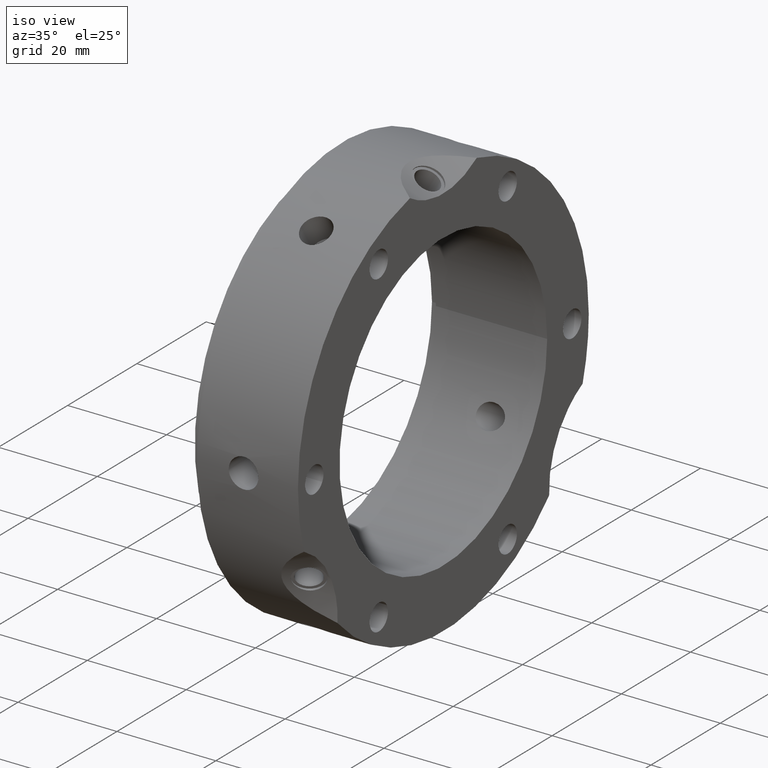
[diagram: clean part render]
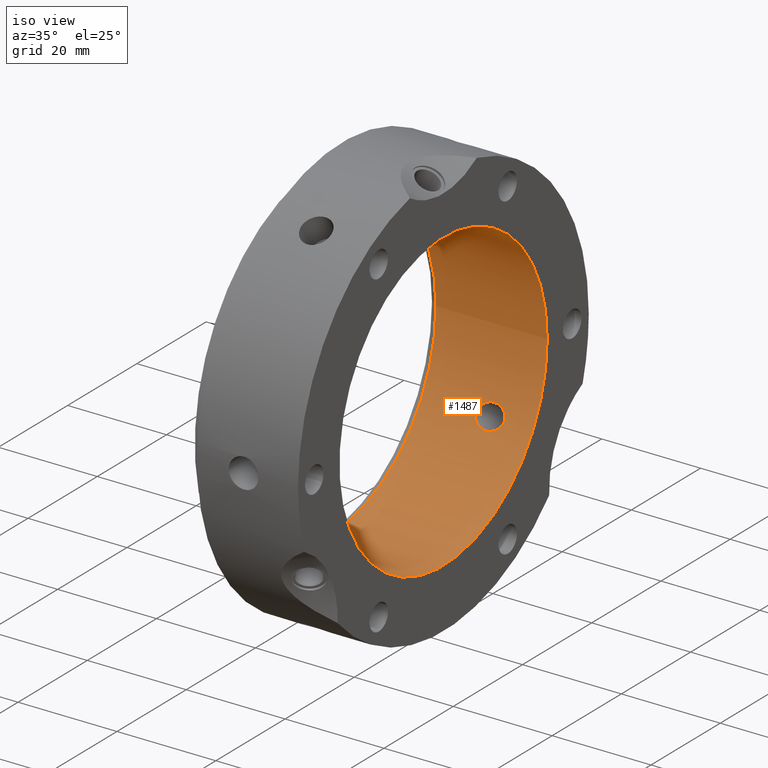
[diagram: same view with one face highlighted and labeled with its STEP entity id]
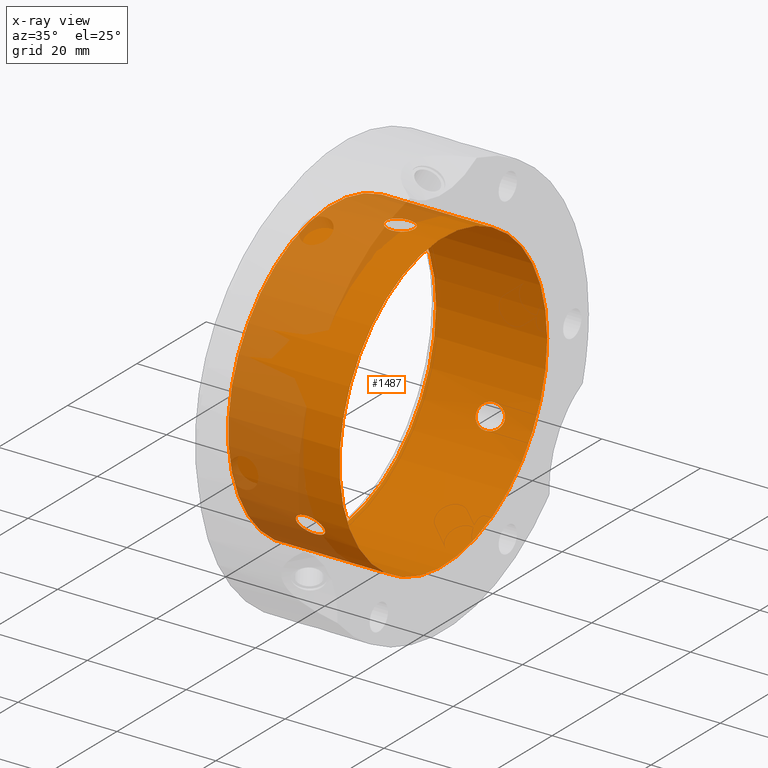
[diagram: x-ray of the same camera — body ghosted, the highlighted face saturated]
A machine part, iso view. The second image highlights one B-rep face of the part: STEP entity #1487.
The next image is the same camera in x-ray: the body ghosted, the highlighted face saturated — about 31% of this face is hidden behind the body in this view.
In plain terms, the highlighted cylindrical surface (bore or boss wall) has radius 30 mm, axis along (1, 0, 0).
Its self-contained STEP definition (entity closure, byte-faithful):
#745=CARTESIAN_POINT('',(15.262249541991931,27.12262431298786,-12.820423174627258));
#746=VERTEX_POINT('',#745);
#747=CARTESIAN_POINT('',(15.262249541991931,27.12262431298786,-12.820423174627258));
#748=CARTESIAN_POINT('',(15.627636976701096,27.12262431298786,-12.820423174627258));
#749=CARTESIAN_POINT('',(16.020136086006023,27.095251033622052,-12.87886785967725));
#750=CARTESIAN_POINT('',(16.752442942682837,26.979415190451064,-13.119795043539256));
#751=CARTESIAN_POINT('',(17.092275130512057,26.890767378951455,-13.302114125166295));
#752=CARTESIAN_POINT('',(17.592953135611992,26.688110103836912,-13.703540458398283));
#753=CARTESIAN_POINT('',(17.801899851276378,26.568065637944919,-13.9364023214765));
#754=CARTESIAN_POINT('',(18.085423899962837,26.291502705228233,-14.45137734818783));
#755=CARTESIAN_POINT('',(18.159339349294182,26.134554479456831,-14.733623808403976));
#756=CARTESIAN_POINT('',(18.159339349294182,25.826969747609468,-15.266376191596049));
#757=CARTESIAN_POINT('',(18.085423899962837,25.661011255819759,-15.543420572301054));
#758=CARTESIAN_POINT('',(17.801899851276378,25.353311266731517,-16.040418611134498));
#759=CARTESIAN_POINT('',(17.592953135611992,25.211669210679197,-16.260811099719803));
#760=CARTESIAN_POINT('',(17.092275130512057,24.965352445909534,-16.637030614846719));
#761=CARTESIAN_POINT('',(16.752442942682833,24.851783395375673,-16.804961412408804));
#762=CARTESIAN_POINT('',(16.020136086006019,24.701052255274423,-17.025741787194669));
#763=CARTESIAN_POINT('',(15.627636976701094,24.664124312987859,-17.078670085035341));
#764=CARTESIAN_POINT('',(14.919062142276687,24.664124312987859,-17.078670085035345));
#765=CARTESIAN_POINT('',(14.549284372236741,24.696875245431656,-17.031721560469542));
#766=CARTESIAN_POINT('',(13.859686883534222,24.835963319541278,-16.828253390736936));
#767=CARTESIAN_POINT('',(13.539972332394203,24.942288076802399,-16.671369021577899));
#768=CARTESIAN_POINT('',(13.047925475858605,25.18377992693603,-16.304040294412307));
#769=CARTESIAN_POINT('',(12.83680603121347,25.331052700679969,-16.075743835667222));
#770=CARTESIAN_POINT('',(12.553631012971064,25.650516665904778,-15.560937167878457));
#771=CARTESIAN_POINT('',(12.481676802083397,25.82244718342309,-15.274209502547361));
#772=CARTESIAN_POINT('',(12.481676802083397,26.139077043643219,-14.725790497452667));
#773=CARTESIAN_POINT('',(12.55363101297106,26.301425227028595,-14.433530468930456));
#774=CARTESIAN_POINT('',(12.836806031213468,26.587528896758879,-13.89946322555768));
#775=CARTESIAN_POINT('',(13.047925475858605,26.711603042754177,-13.657773032837088));
#776=CARTESIAN_POINT('',(13.539972332394203,26.908973126952567,-13.264970592231659));
#777=CARTESIAN_POINT('',(13.85968688353422,26.99167659747043,-13.0944484668128));
#778=CARTESIAN_POINT('',(14.549284372236739,27.09834116426558,-12.872260576404113));
#779=CARTESIAN_POINT('',(14.919062142276687,27.12262431298786,-12.820423174627255));
#780=CARTESIAN_POINT('',(15.262249541991931,27.12262431298786,-12.820423174627255));
#781=B_SPLINE_CURVE_WITH_KNOTS('',3,(#747,#748,#749,#750,#751,#752,#753,#754,#755,#756,#757,#758,#759,#760,#761,#762,#763,#764,#765,#766,#767,#768,#769,#770,#771,#772,#773,#774,#775,#776,#777,#778,#779,#780),.UNSPECIFIED.,.T.,.U.,(4,2,2,2,2,2,2,2,2,2,2,2,2,2,2,2,4),(0.0,0.109616230412749,0.219232460825499,0.311507880379706,0.403783299933914,0.496058719488122,0.58833413904233,0.697950369455079,0.807566599867828,0.910522819782402,1.013479039696975,1.108467997763013,1.203456955829052,1.29844591389509,1.393434871961128,1.496391091875702,1.599347311790275),.UNSPECIFIED.);
#782=EDGE_CURVE('',#746,#746,#781,.T.);
#916=CARTESIAN_POINT('',(15.262249541991926,-24.66412431298787,-17.078670085035327));
#917=VERTEX_POINT('',#916);
#918=CARTESIAN_POINT('',(15.262249541991926,-24.66412431298787,-17.078670085035327));
#919=CARTESIAN_POINT('',(15.627636976701089,-24.66412431298787,-17.078670085035327));
#920=CARTESIAN_POINT('',(16.020136086006019,-24.701052255274433,-17.025741787194647));
#921=CARTESIAN_POINT('',(16.752442942682833,-24.851783395375683,-16.804961412408783));
#922=CARTESIAN_POINT('',(17.092275130512057,-24.965352445909545,-16.637030614846701));
#923=CARTESIAN_POINT('',(17.592953135611992,-25.211669210679204,-16.260811099719781));
#924=CARTESIAN_POINT('',(17.801899851276378,-25.353311266731527,-16.040418611134481));
#925=CARTESIAN_POINT('',(18.085423899962837,-25.661011255819762,-15.543420572301033));
#926=CARTESIAN_POINT('',(18.159339349294182,-25.826969747609482,-15.266376191596034));
#927=CARTESIAN_POINT('',(18.159339349294182,-26.134554479456842,-14.733623808403959));
#928=CARTESIAN_POINT('',(18.085423899962837,-26.291502705228243,-14.451377348187819));
#929=CARTESIAN_POINT('',(17.801899851276382,-26.56806563794493,-13.936402321476489));
#930=CARTESIAN_POINT('',(17.592953135611992,-26.68811010383692,-13.703540458398265));
#931=CARTESIAN_POINT('',(17.092275130512057,-26.890767378951463,-13.302114125166277));
#932=CARTESIAN_POINT('',(16.752442942682833,-26.979415190451078,-13.119795043539233));
#933=CARTESIAN_POINT('',(16.020136086006019,-27.095251033622066,-12.878867859677229));
#934=CARTESIAN_POINT('',(15.627636976701094,-27.122624312987867,-12.820423174627241));
#935=CARTESIAN_POINT('',(14.908527139262279,-27.122624312987867,-12.820423174627241));
#936=CARTESIAN_POINT('',(14.52790402476696,-27.096843099518523,-12.87548564559672));
#937=CARTESIAN_POINT('',(13.821370532562957,-26.983781880983141,-13.110779990664669));
#938=CARTESIAN_POINT('',(13.495562842741968,-26.896164948175549,-13.29115816068866));
#939=CARTESIAN_POINT('',(13.014395466764014,-26.69291223223313,-13.694242901771144));
#940=CARTESIAN_POINT('',(12.815377719960582,-26.570753304425953,-13.931342034839805));
#941=CARTESIAN_POINT('',(12.54895968223021,-26.291337191608978,-14.451740750316093));
#942=CARTESIAN_POINT('',(12.481676802083397,-26.133791431408056,-14.734945446393066));
#943=CARTESIAN_POINT('',(12.481676802083397,-25.827732795658264,-15.26505455360692));
#944=CARTESIAN_POINT('',(12.548959682230203,-25.661243214485019,-15.543095532237931));
#945=CARTESIAN_POINT('',(12.81537771996058,-25.350272763194248,-16.045276341902287));
#946=CARTESIAN_POINT('',(13.014395466764018,-25.206018354645106,-16.269618643216699));
#947=CARTESIAN_POINT('',(13.495562842741968,-24.958563086961014,-16.647183029152256));
#948=CARTESIAN_POINT('',(13.821370532562959,-24.846159475835883,-16.813250603777298));
#949=CARTESIAN_POINT('',(14.527904024766967,-24.698919204907909,-17.028811663745739));
#950=CARTESIAN_POINT('',(14.908527139262279,-24.66412431298787,-17.078670085035327));
#951=CARTESIAN_POINT('',(15.262249541991926,-24.66412431298787,-17.078670085035327));
#952=B_SPLINE_CURVE_WITH_KNOTS('',3,(#918,#919,#920,#921,#922,#923,#924,#925,#926,#927,#928,#929,#930,#931,#932,#933,#934,#935,#936,#937,#938,#939,#940,#941,#942,#943,#944,#945,#946,#947,#948,#949,#950,#951),.UNSPECIFIED.,.T.,.U.,(4,2,2,2,2,2,2,2,2,2,2,2,2,2,2,2,4),(0.0,0.109616230412749,0.219232460825499,0.311507880379707,0.403783299933914,0.496058719488122,0.58833413904233,0.697950369455079,0.807566599867829,0.913683320686723,1.019800041505618,1.111617632230555,1.203435222955492,1.29525281368043,1.387070404405367,1.493187125224261,1.599303846043156),.UNSPECIFIED.);
#953=EDGE_CURVE('',#917,#917,#952,.T.);
#1182=CARTESIAN_POINT('',(15.262249541991933,-2.4585,29.899093259662571));
#1183=VERTEX_POINT('',#1182);
#1184=CARTESIAN_POINT('',(15.262249541991933,-2.4585,29.899093259662571));
#1185=CARTESIAN_POINT('',(15.613194848532508,-2.4585,29.899093259662571));
#1186=CARTESIAN_POINT('',(15.990886147558971,-2.39912378459716,29.90417297924315));
#1187=CARTESIAN_POINT('',(16.699505407317982,-2.151994790138669,29.922972362304726));
#1188=CARTESIAN_POINT('',(17.030438722793019,-1.964241391892319,29.936481455799779));
#1189=CARTESIAN_POINT('',(17.545073387180732,-1.531124811237559,29.961621680545932));
#1190=CARTESIAN_POINT('',(17.770901497809913,-1.263046847344615,29.97492454254774));
#1191=CARTESIAN_POINT('',(18.078378729766587,-0.6587451388431,29.994290189361376));
#1192=CARTESIAN_POINT('',(18.159339349294186,-0.322160064948773,30.0));
#1193=CARTESIAN_POINT('',(18.159339349294182,0.307584731847359,30.0));
#1194=CARTESIAN_POINT('',(18.085423899962837,0.630491449408472,29.99479792048885));
#1195=CARTESIAN_POINT('',(17.801899851276378,1.214754371213401,29.97682093261097));
#1196=CARTESIAN_POINT('',(17.592953135611992,1.476440893157706,29.964351558118054));
#1197=CARTESIAN_POINT('',(17.092275130512057,1.925414933041918,29.939144740012988));
#1198=CARTESIAN_POINT('',(16.752442942682841,2.127631795075393,29.924756455948028));
#1199=CARTESIAN_POINT('',(16.020136086006023,2.394198778347626,29.90460964687189));
#1200=CARTESIAN_POINT('',(15.627636976701096,2.4585,29.899093259662575));
#1201=CARTESIAN_POINT('',(14.908527139262283,2.4585,29.899093259662575));
#1202=CARTESIAN_POINT('',(14.527904024766965,2.397923894610614,29.904297309342471));
#1203=CARTESIAN_POINT('',(13.821370532562963,2.137622405147258,29.924030594441973));
#1204=CARTESIAN_POINT('',(13.49556284274197,1.937601861214534,29.938341189840926));
#1205=CARTESIAN_POINT('',(13.014395466764018,1.486893877588026,29.963861544987846));
#1206=CARTESIAN_POINT('',(12.815377719960582,1.220480541231711,29.976618376742099));
#1207=CARTESIAN_POINT('',(12.548959682230205,0.630093977123961,29.99483628255404));
#1208=CARTESIAN_POINT('',(12.481676802083401,0.306058635749791,30.0));
#1209=CARTESIAN_POINT('',(12.481676802083401,-0.30605863574979,30.0));
#1210=CARTESIAN_POINT('',(12.548959682230205,-0.630093977123961,29.99483628255404));
#1211=CARTESIAN_POINT('',(12.815377719960582,-1.220480541231711,29.976618376742099));
#1212=CARTESIAN_POINT('',(13.014395466764018,-1.486893877588025,29.963861544987846));
#1213=CARTESIAN_POINT('',(13.495562842741968,-1.937601861214533,29.938341189840919));
#1214=CARTESIAN_POINT('',(13.821370532562957,-2.137622405147255,29.92403059444197));
#1215=CARTESIAN_POINT('',(14.527904024766961,-2.397923894610612,29.904297309342468));
#1216=CARTESIAN_POINT('',(14.908527139262283,-2.4585,29.899093259662575));
#1217=CARTESIAN_POINT('',(15.262249541991933,-2.4585,29.899093259662575));
#1218=B_SPLINE_CURVE_WITH_KNOTS('',3,(#1184,#1185,#1186,#1187,#1188,#1189,#1190,#1191,#1192,#1193,#1194,#1195,#1196,#1197,#1198,#1199,#1200,#1201,#1202,#1203,#1204,#1205,#1206,#1207,#1208,#1209,#1210,#1211,#1212,#1213,#1214,#1215,#1216,#1217),.UNSPECIFIED.,.T.,.U.,(4,2,2,2,2,2,2,2,2,2,2,2,2,2,2,2,4),(0.0,0.105283591962173,0.210567183924346,0.307215203408977,0.403863222893609,0.496138642447817,0.588414062002024,0.698030292414774,0.807646522827523,0.913763243646418,1.019879964465313,1.11169755519025,1.203515145915187,1.295332736640124,1.387150327365061,1.493267048183955,1.59938376900285),.UNSPECIFIED.);
#1219=EDGE_CURVE('',#1183,#1183,#1218,.T.);
#1355=CARTESIAN_POINT('',(23.999999999999993,30.0,0.0));
#1356=VERTEX_POINT('',#1355);
#1357=CARTESIAN_POINT('',(23.999999999999993,0.0,0.0));
#1358=DIRECTION('',(1.0,0.0,0.0));
#1359=DIRECTION('',(0.0,1.0,0.0));
#1360=AXIS2_PLACEMENT_3D('',#1357,#1358,#1359);
#1361=CIRCLE('',#1360,30.0);
#1362=EDGE_CURVE('',#1356,#1356,#1361,.T.);
#1383=CARTESIAN_POINT('',(1.499999999999991,30.0,0.0));
#1384=VERTEX_POINT('',#1383);
#1385=CARTESIAN_POINT('',(1.499999999999991,0.0,0.0));
#1386=DIRECTION('',(1.0,0.0,0.0));
#1387=DIRECTION('',(0.0,1.0,0.0));
#1388=AXIS2_PLACEMENT_3D('',#1385,#1386,#1387);
#1389=CIRCLE('',#1388,30.0);
#1390=EDGE_CURVE('',#1384,#1384,#1389,.T.);
#1467=CARTESIAN_POINT('',(12.749999999999993,0.0,0.0));
#1468=DIRECTION('',(1.0,0.0,0.0));
#1469=DIRECTION('',(0.0,1.0,0.0));
#1470=AXIS2_PLACEMENT_3D('',#1467,#1468,#1469);
#1471=CYLINDRICAL_SURFACE('',#1470,30.0);
#1472=ORIENTED_EDGE('',*,*,#1390,.F.);
#1473=EDGE_LOOP('',(#1472));
#1474=FACE_OUTER_BOUND('',#1473,.T.);
#1475=ORIENTED_EDGE('',*,*,#782,.T.);
#1476=EDGE_LOOP('',(#1475));
#1477=FACE_BOUND('',#1476,.T.);
#1478=ORIENTED_EDGE('',*,*,#953,.T.);
#1479=EDGE_LOOP('',(#1478));
#1480=FACE_BOUND('',#1479,.T.);
#1481=ORIENTED_EDGE('',*,*,#1219,.T.);
#1482=EDGE_LOOP('',(#1481));
#1483=FACE_BOUND('',#1482,.T.);
#1484=ORIENTED_EDGE('',*,*,#1362,.T.);
#1485=EDGE_LOOP('',(#1484));
#1486=FACE_BOUND('',#1485,.T.);
#1487=ADVANCED_FACE('',(#1474,#1477,#1480,#1483,#1486),#1471,.F.);